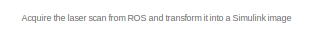
[diagram: root canvas - part 1/4, top left region]
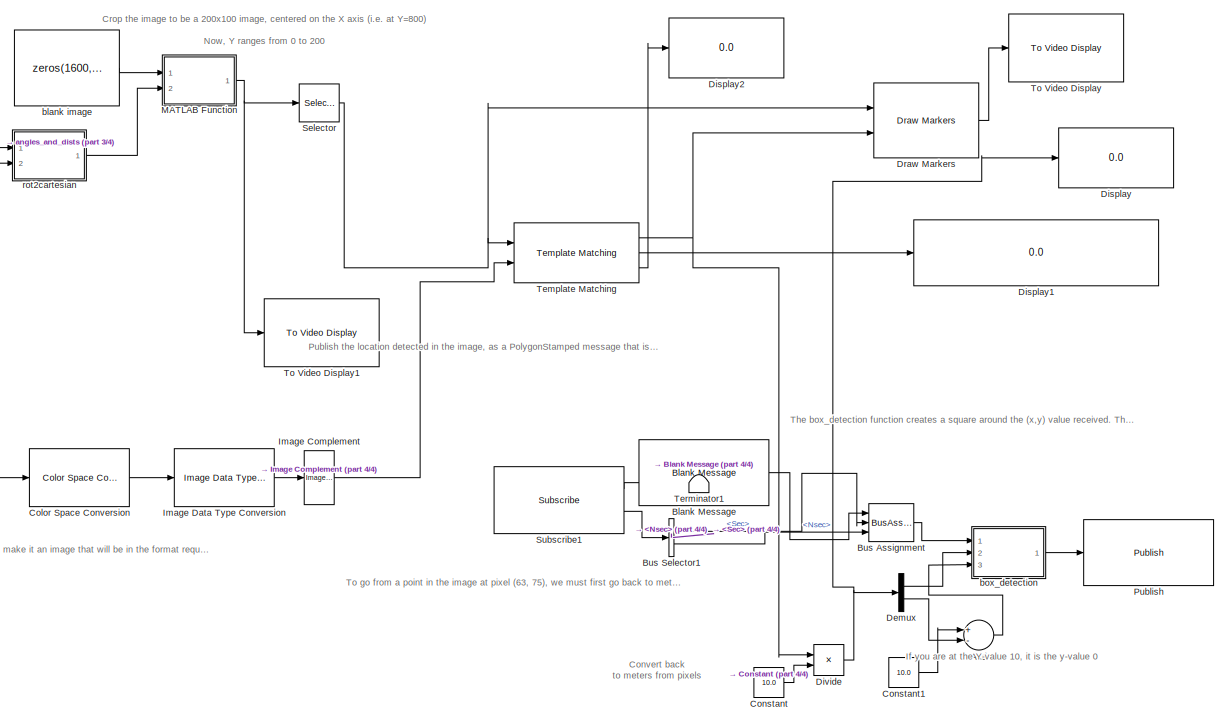
[diagram: root canvas - part 2/4, center side, full height]
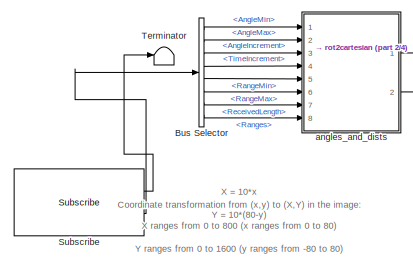
[diagram: root canvas - part 3/4, top left region]
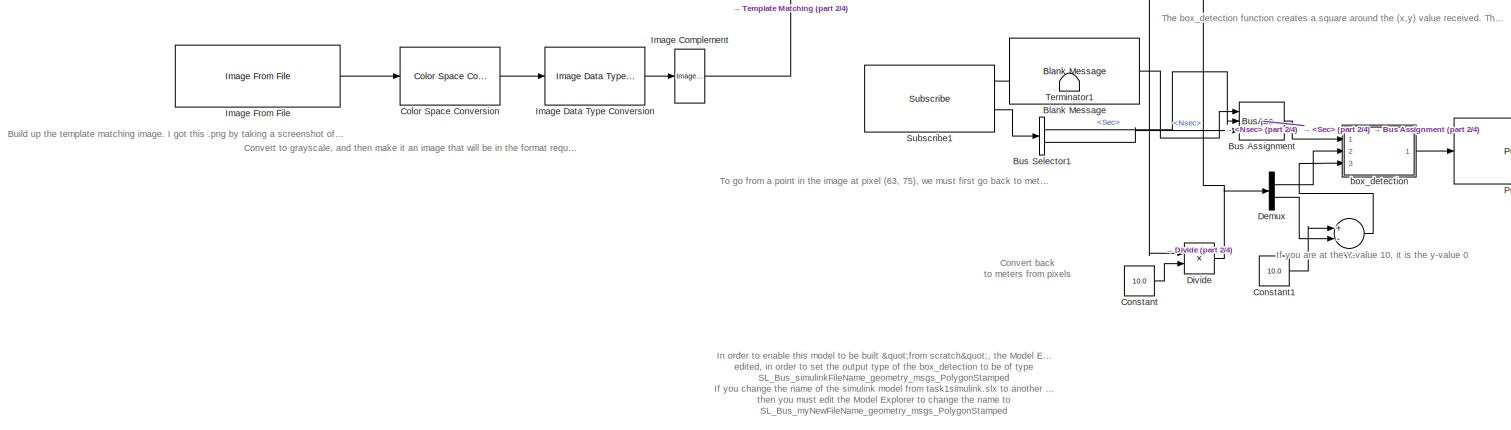
[diagram: root canvas - part 4/4, full width, bottom band]
MODEL slx_1b20de0d2428
KIND model
CONFIG AbsTol = auto
CONFIG FixedStep = 1.0
CONFIG MaxStep = auto
CONFIG MinStep = auto
CONFIG RelTol = 1e-3
CONFIG SampleTimeConstraint = Unconstrained
CONFIG Solver = FixedStepAuto
CONFIG SolverMode = Auto
CONFIG SolverName = FixedStepAuto
CONFIG StartTime = 0.0
CONFIG StopTime = inf
WORKSPACE source: MAT-file member
WORKSPACE SL_ROS_VariableLengthArrays_MaxSizes: struct (value not decoded)
BLOCK [Sum] Add
  InputSameDT = off
  Inputs = +-
  OutDataTypeStr = Inherit: Inherit via internal rule
  Ports = [2, 1]
  SaturateOnIntegerOverflow = off
BLOCK [Reference] Blank Message  REF=robotlib/Blank Message
  Ports = [0, 1]
  SourceBlock = robotlib/Blank Message
  SourceLibraryInfo = This block requires Robotics System Toolbox
  SourceType = ROS Blank Message
BLOCK [BusAssignment] Bus Assignment
  AssignedSignals = Header.Stamp.Sec,Header.Stamp.Nsec
  Ports = [3, 1]
BLOCK [BusSelector] Bus Selector
  OutputSignals = AngleMin,AngleMax,AngleIncrement,TimeIncrement,RangeMin,RangeMax,Ranges_SL_Info.ReceivedLength,Ranges
  Ports = [1, 8]
BLOCK [BusSelector] Bus Selector1
  OutputSignals = Clock_.Sec,Clock_.Nsec
  Ports = [1, 2]
BLOCK [Reference] Color Space Conversion  REF=visionconversions/Color Space
 Conversion
  Ports = [1, 1]
  SourceBlock = visionconversions/Color Space\n Conversion
  SourceType = Color Space Conversion
BLOCK [Constant] Constant
  Value = 10.0
BLOCK [Constant] Constant1
  Value = 10.0
BLOCK [Demux] Demux
  DisplayOption = bar
  Outputs = 2
  Ports = [1, 2]
BLOCK [Display] Display
  Commented = on
  Decimation = 1
  Ports = [1]
BLOCK [Display] Display1
  Commented = on
  Decimation = 1
  Ports = [1]
BLOCK [Display] Display2
  Commented = on
  Decimation = 1
  Ports = [1]
BLOCK [Product] Divide
  InputSameDT = off
  Inputs = */
  OutDataTypeStr = Inherit: Inherit via internal rule
  Ports = [2, 1]
  RndMeth = Floor
  SaturateOnIntegerOverflow = off
BLOCK [Reference] Draw Markers  REF=visiontextngfix/Draw Markers
  Commented = on
  Ports = [2, 1]
  SourceBlock = visiontextngfix/Draw Markers
  SourceType = Draw Markers
BLOCK [Reference] Image Complement  REF=visionconversions/Image Complement
  Ports = [1, 1]
  SourceBlock = visionconversions/Image Complement
  SourceType = Image Complement
BLOCK [Reference] Image Data Type Conversion  REF=visionconversions/Image Data Type
Conversion
  Ports = [1, 1]
  SourceBlock = visionconversions/Image Data Type\nConversion
  SourceType = Image Data Type Conversion
BLOCK [Reference] Image From File  REF=visionsources/Image From File
  Ports = [0, 1]
  SourceBlock = visionsources/Image From File
  SourceType = Image From File
  Tag = vipblks_nd
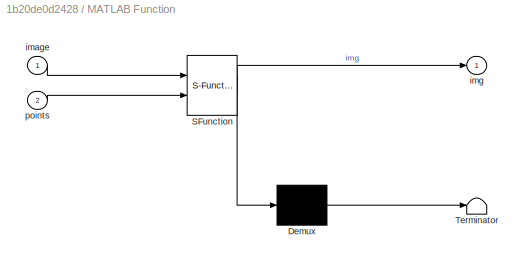
BLOCK [SubSystem] MATLAB Function
  ErrorFcn = Stateflow.Translate.translate
  PermitHierarchicalResolution = ExplicitOnly
  Ports = [2, 1]
  RequestExecContextInheritance = off
  SFBlockType = MATLAB Function
  TreatAsAtomicUnit = on
  Variant = off
BLOCK [Demux] MATLAB Function/ Demux 
  Outputs = 1
  Ports = [1, 1]
BLOCK [S-Function] MATLAB Function/ SFunction 
  EnableBusSupport = on
  FunctionName = sf_sfun
  PortCounts = [2 2]
  Ports = [2, 2]
  SFunctionDeploymentMode = off
  Tag = Stateflow S-Function laserscan2templateMatchPolygon 3
BLOCK [Terminator] MATLAB Function/ Terminator 
BLOCK [Inport] MATLAB Function/image
  IconDisplay = Port number
BLOCK [Outport] MATLAB Function/img
  IconDisplay = Port number
BLOCK [Inport] MATLAB Function/points
  IconDisplay = Port number
  Port = 2
BLOCK [Reference] Publish  REF=robotlib/Publish
  Ports = [1]
  SourceBlock = robotlib/Publish
  SourceLibraryInfo = This block requires Robotics System Toolbox
  SourceType = ROS Publish
BLOCK [Selector] Selector
  IndexOptions = Starting index (dialog),Starting index (dialog)
  Indices = 700,1
  InputPortWidth = 3
  NumberOfDimensions = 2
  OutputSizes = 200,100
  Ports = [1, 1]
BLOCK [Reference] Subscribe  REF=robotlib/Subscribe
  Ports = [0, 2]
  SourceBlock = robotlib/Subscribe
  SourceLibraryInfo = This block requires Robotics System Toolbox
  SourceType = ROS Subscribe
BLOCK [Reference] Subscribe1  REF=robotlib/Subscribe
  Ports = [0, 2]
  SourceBlock = robotlib/Subscribe
  SourceLibraryInfo = This block requires Robotics System Toolbox
  SourceType = ROS Subscribe
BLOCK [Reference] Template Matching  REF=visionanalysis/Template Matching
  Ports = [2, 3]
  SourceBlock = visionanalysis/Template Matching
  SourceType = Template Matching
BLOCK [Terminator] Terminator
BLOCK [Terminator] Terminator1
BLOCK [Reference] To Video Display  REF=visionsinks/To Video Display
  Commented = on
  Ports = [1]
  SourceBlock = visionsinks/To Video Display
  SourceType = To Video Display
BLOCK [Reference] To Video Display1  REF=visionsinks/To Video Display
  Commented = on
  Ports = [1]
  SourceBlock = visionsinks/To Video Display
  SourceType = To Video Display
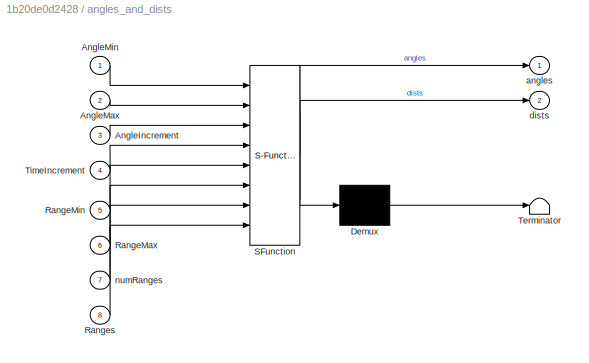
BLOCK [SubSystem] angles_and_dists
  ErrorFcn = Stateflow.Translate.translate
  PermitHierarchicalResolution = ExplicitOnly
  Ports = [8, 2]
  RequestExecContextInheritance = off
  SFBlockType = MATLAB Function
  TreatAsAtomicUnit = on
  Variant = off
BLOCK [Demux] angles_and_dists/ Demux 
  Outputs = 1
  Ports = [1, 1]
BLOCK [S-Function] angles_and_dists/ SFunction 
  EnableBusSupport = on
  FunctionName = sf_sfun
  PortCounts = [8 3]
  Ports = [8, 3]
  SFunctionDeploymentMode = off
  Tag = Stateflow S-Function laserscan2templateMatchPolygon 2
BLOCK [Terminator] angles_and_dists/ Terminator 
BLOCK [Inport] angles_and_dists/AngleIncrement
  IconDisplay = Port number
  Port = 3
BLOCK [Inport] angles_and_dists/AngleMax
  IconDisplay = Port number
  Port = 2
BLOCK [Inport] angles_and_dists/AngleMin
  IconDisplay = Port number
BLOCK [Inport] angles_and_dists/RangeMax
  IconDisplay = Port number
  Port = 6
BLOCK [Inport] angles_and_dists/RangeMin
  IconDisplay = Port number
  Port = 5
BLOCK [Inport] angles_and_dists/Ranges
  IconDisplay = Port number
  Port = 8
BLOCK [Inport] angles_and_dists/TimeIncrement
  IconDisplay = Port number
  Port = 4
BLOCK [Outport] angles_and_dists/angles
  IconDisplay = Port number
BLOCK [Outport] angles_and_dists/dists
  IconDisplay = Port number
  Port = 2
BLOCK [Inport] angles_and_dists/numRanges
  IconDisplay = Port number
  Port = 7
BLOCK [Constant] blank image
  Value = zeros(1600,800)
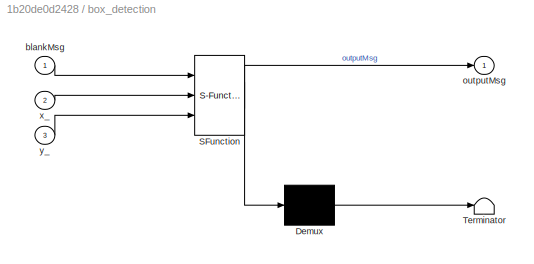
BLOCK [SubSystem] box_detection
  ErrorFcn = Stateflow.Translate.translate
  PermitHierarchicalResolution = ExplicitOnly
  Ports = [3, 1]
  RequestExecContextInheritance = off
  SFBlockType = MATLAB Function
  TreatAsAtomicUnit = on
  Variant = off
BLOCK [Demux] box_detection/ Demux 
  Outputs = 1
  Ports = [1, 1]
BLOCK [S-Function] box_detection/ SFunction 
  EnableBusSupport = on
  FunctionName = sf_sfun
  PortCounts = [3 2]
  Ports = [3, 2]
  SFunctionDeploymentMode = off
  Tag = Stateflow S-Function laserscan2templateMatchPolygon 4
BLOCK [Terminator] box_detection/ Terminator 
BLOCK [Inport] box_detection/blankMsg
  IconDisplay = Port number
BLOCK [Outport] box_detection/outputMsg
  IconDisplay = Port number
BLOCK [Inport] box_detection/x_
  IconDisplay = Port number
  Port = 2
BLOCK [Inport] box_detection/y_
  IconDisplay = Port number
  Port = 3
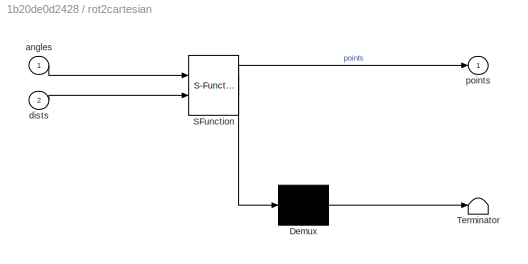
BLOCK [SubSystem] rot2cartesian
  ErrorFcn = Stateflow.Translate.translate
  PermitHierarchicalResolution = ExplicitOnly
  Ports = [2, 1]
  RequestExecContextInheritance = off
  SFBlockType = MATLAB Function
  TreatAsAtomicUnit = on
  Variant = off
BLOCK [Demux] rot2cartesian/ Demux 
  Outputs = 1
  Ports = [1, 1]
BLOCK [S-Function] rot2cartesian/ SFunction 
  EnableBusSupport = on
  FunctionName = sf_sfun
  PortCounts = [2 2]
  Ports = [2, 2]
  SFunctionDeploymentMode = off
  Tag = Stateflow S-Function laserscan2templateMatchPolygon 1
BLOCK [Terminator] rot2cartesian/ Terminator 
BLOCK [Inport] rot2cartesian/angles
  IconDisplay = Port number
BLOCK [Inport] rot2cartesian/dists
  IconDisplay = Port number
  Port = 2
BLOCK [Outport] rot2cartesian/points
  IconDisplay = Port number
ANNOTATION (root): In order to enable this model to be built "from scratch", the Model Explorer (Tools->Model Explorer) must be edited, in order to set the output type of the box_detection to be of type SL_Bus_simulinkFileName_geometry_msgs_PolygonStamped If you change the name of the simulink model from task1simulink.slx to another name (e.g., myEdit.slx), then you must edit the Model Explorer to change the name to...<+50ch>
ANNOTATION (root): The box_detection function creates a square around the (x,y) value received. The box_detection takes that (x_,y_) point and finds the nearest integer coordinates to create a polygon.
ANNOTATION (root): Acquire the laser scan from ROS and transform it into a Simulink image
ANNOTATION (root): Build up the template matching image. I got this .png by taking a screenshot of the output of the laser scan image, after cropping it. Make sure when you save the .png file, that you don't save the Alpha channel.
ANNOTATION (root): Convert back to meters from pixels
ANNOTATION (root): Convert to grayscale, and then make it an image that will be in the format required (an array of single-valued
ANNOTATION (root): Coordinate transformation from (x,y) to (X,Y) in the image: X = 10*x Y = 10*(80-y) X ranges from 0 to 800 (x ranges from 0 to 80) Y ranges from 0 to 1600 (y ranges from -80 to 80)
ANNOTATION (root): Crop the image to be a 200x100 image, centered on the X axis (i.e. at Y=800) Now, Y ranges from 0 to 200
ANNOTATION (root): If you are at the Y-value 10, it is the y-value 0
ANNOTATION (root): Publish the location detected in the image, as a PolygonStamped message that is a square around a point within the located object.
ANNOTATION (root): To go from a point in the image at pixel (63, 75), we must first go back to meters (6.3, 7.5), and then remember that the up/down pixels are in the Y-frame, and must be converted to y by subtracting from 10 since the image is 20m high
LINE Add:1 -> box_detection:3
LINE Blank Message:1 -> Bus Assignment:1
LINE Bus Assignment:1 -> box_detection:1
LINE Bus Selector1:1 -> Bus Assignment:2
LINE Bus Selector1:2 -> Bus Assignment:3
LINE Bus Selector:1 -> angles_and_dists:1
LINE Bus Selector:2 -> angles_and_dists:2
LINE Bus Selector:3 -> angles_and_dists:3
LINE Bus Selector:4 -> angles_and_dists:4
LINE Bus Selector:5 -> angles_and_dists:5
LINE Bus Selector:6 -> angles_and_dists:6
LINE Bus Selector:7 -> angles_and_dists:7
LINE Bus Selector:8 -> angles_and_dists:8
LINE Color Space Conversion:1 -> Image Data Type Conversion:1
LINE Constant1:1 -> Add:1
LINE Constant:1 -> Divide:2
LINE Demux:1 -> box_detection:2
LINE Demux:2 -> Add:2
NET Divide:1 -> Demux:1, Display:1
LINE Draw Markers:1 -> To Video Display:1
LINE Image Complement:1 -> Template Matching:2
LINE Image Data Type Conversion:1 -> Image Complement:1
LINE Image From File:1 -> Color Space Conversion:1
NET MATLAB Function:1 -> Selector:1, To Video Display1:1
NET Selector:1 -> Draw Markers:1, Template Matching:1
LINE Subscribe1:1 -> Terminator1:1
LINE Subscribe1:2 -> Bus Selector1:1
LINE Subscribe:1 -> Terminator:1
LINE Subscribe:2 -> Bus Selector:1
NET Template Matching:1 -> Divide:1, Draw Markers:2
LINE Template Matching:2 -> Display1:1
LINE Template Matching:3 -> Display2:1
LINE angles_and_dists:1 -> rot2cartesian:1
LINE angles_and_dists:2 -> rot2cartesian:2
LINE blank image:1 -> MATLAB Function:1
LINE box_detection:1 -> Publish:1
LINE rot2cartesian:1 -> MATLAB Function:2
note: NET lines group one-source signal fan-out (src -> all destinations, sorted); 1:1 wires keep LINE
CHART rot2cartesian states=1 transitions=1
  STATE_LABEL 'eML_blk_kernel()'
  STATE_LABEL 'SCRIPT:\nfunction points = fcn(angles,dists)\n%#codegen\nxs = dists.*cos(angles);\nys = dists.*sin(angles);\npoints = [xs,ys];'
CHART angles_and_dists states=1 transitions=1
  STATE_LABEL 'eML_blk_kernel()'
  STATE_LABEL 'SCRIPT:\nfunction [angles,dists] = fcn(AngleMin, AngleMax, AngleIncrement, ...\n                TimeIncrement, RangeMin, RangeMax, numRanges, Ranges )\n%#codegen\n% this function transforms the laser scan into cartesian coordinates, so\n% that you can use other tools to group them together, make an image, etc.\nif numRanges > 0 \nangleMin = double(AngleMin);\nangleMax = double(AngleMax);\nangleIncrement = ...<+779ch>'
CHART MATLAB Function states=1 transitions=1
  STATE_LABEL 'eML_blk_kernel()'
  STATE_LABEL 'SCRIPT:\nfunction img = fcn(image,points)\n%#codegen\nimg = single(image);\n% we assume we will be getting 180x2 points\nlen=180;\n% the point (0,-20) would, normally, be in the bottom half of the image\n% note: (with +x forward, and +y to the left of the car).\n% But, the bottom half of the image should be +20 more pixels. So, we will\n% instead /subtract/ from 80, all the points. That way, point\npts = po...<+813ch>'
CHART box_detection states=1 transitions=1
  STATE_LABEL 'eML_blk_kernel()'
  STATE_LABEL "SCRIPT:\n    function outputMsg = fcn(blankMsg,x_,y_)\n    %#codegen\n    % the sequence of the message must increment each time we publish, so we\n    % need it to be persistent across instantiations\n    persistent seq;\n\n    % if this is the first time our model is run, then 'seq' will not exist.\n    % Then 'isempty(seq)' will be true, which allows us to intialize it to 0\n    if isempty(seq)\n        ...<+1724ch>"
